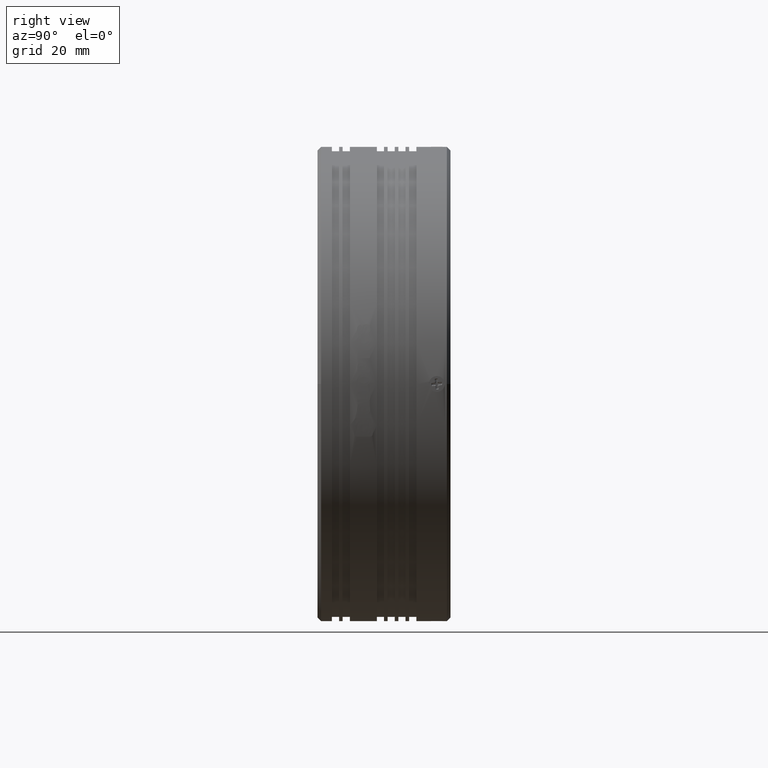
[diagram: clean part render]
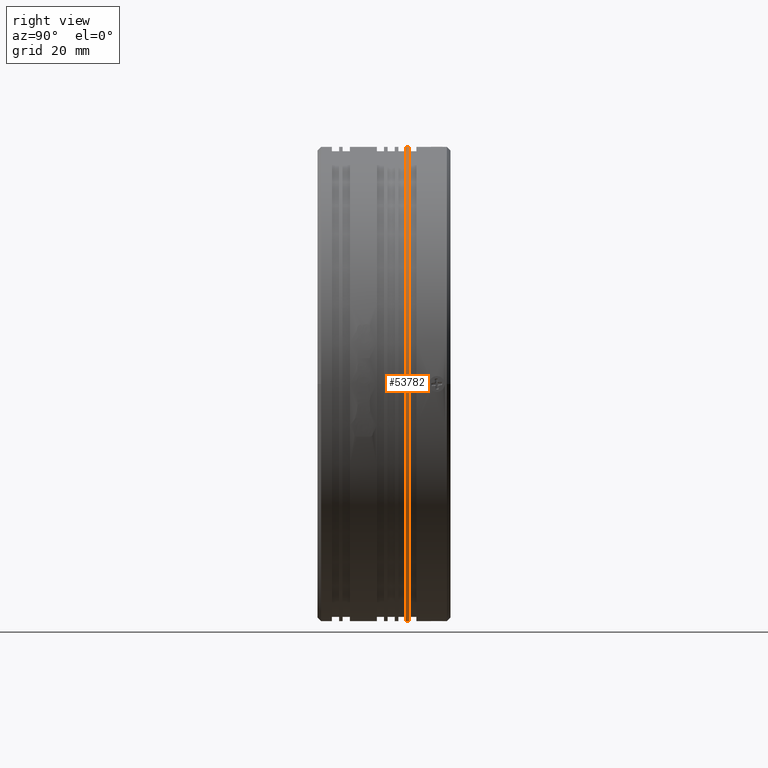
[diagram: same view with one face highlighted and labeled with its STEP entity id]
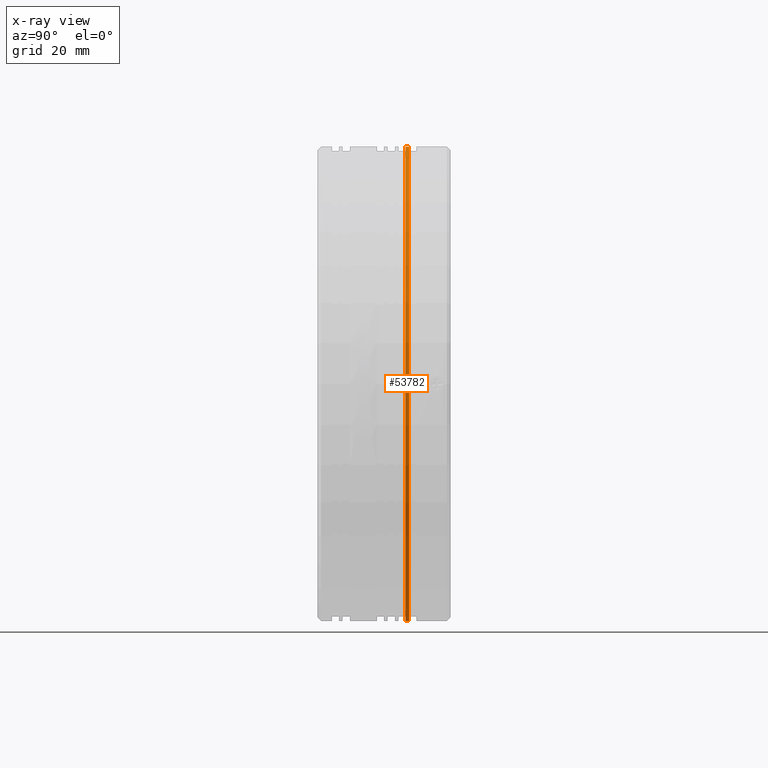
[diagram: x-ray of the same camera — body ghosted, the highlighted face saturated]
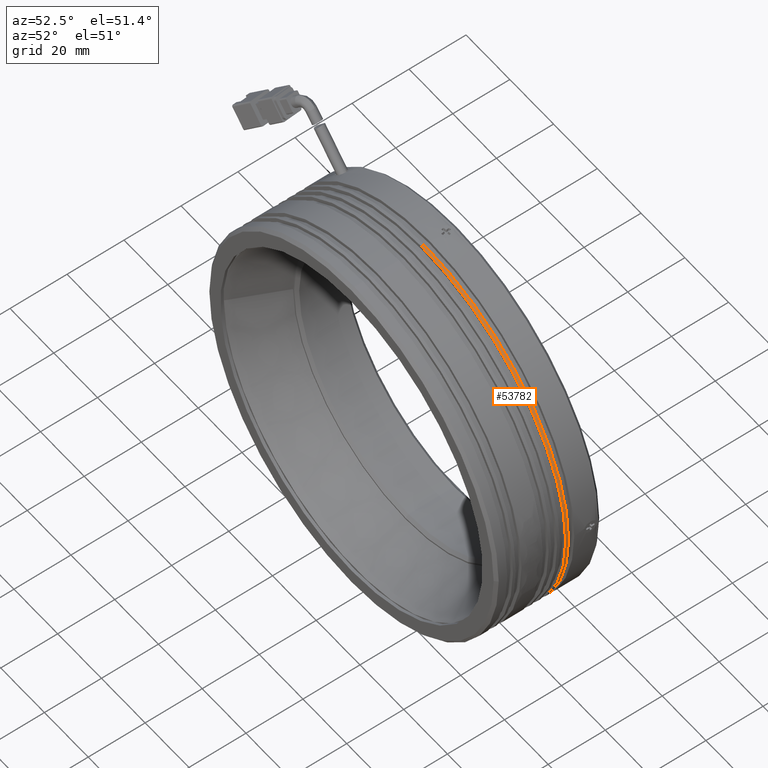
[diagram: same view with one face highlighted and labeled with its STEP entity id]
A machine part, right view. The second image highlights one B-rep face of the part: STEP entity #53782.
The next image is the same camera in x-ray: the body ghosted, the highlighted face saturated — about 0% of this face is hidden behind the body in this view.
A second angle (auxiliary view) of the same face is appended — the face is thin or edge-on in the first view.
In plain terms, the highlighted cylindrical surface (partial cylindrical patch) has radius 66 mm, axis along (-0, -1, -0).
Its self-contained STEP definition (entity closure, byte-faithful):
#2374 = DIRECTION ( 'NONE',  ( -0.0000000000000000000, -1.000000000000000000, -0.0000000000000000000 ) ) ;
#2659 = VECTOR ( 'NONE', #23581, 1000.000000000000000 ) ;
#3466 = ORIENTED_EDGE ( 'NONE', *, *, #65195, .T. ) ;
#9350 = CARTESIAN_POINT ( 'NONE',  ( -22.28931969498006900, 18.64734950584007600, 66.00000000000000000 ) ) ;
#10863 = CARTESIAN_POINT ( 'NONE',  ( -22.28931969498007600, 18.64734950584007600, 0.0000000000000000000 ) ) ;
#11186 = CARTESIAN_POINT ( 'NONE',  ( -22.28931969498006900, 19.64734950584005400, 66.00000000000000000 ) ) ;
#11432 = AXIS2_PLACEMENT_3D ( 'NONE', #58113, #2374, #47135 ) ;
#13356 = VECTOR ( 'NONE', #54608, 1000.000000000000000 ) ;
#14217 = ORIENTED_EDGE ( 'NONE', *, *, #64767, .F. ) ;
#16498 = DIRECTION ( 'NONE',  ( 0.0000000000000000000, 0.0000000000000000000, -1.000000000000000000 ) ) ;
#17967 = CARTESIAN_POINT ( 'NONE',  ( -22.28931969498007600, -31.13173980934526600, -66.00000000000000000 ) ) ;
#21900 = CARTESIAN_POINT ( 'NONE',  ( -22.28931969498006900, -31.13173980934526600, 66.00000000000000000 ) ) ;
#23581 = DIRECTION ( 'NONE',  ( -0.0000000000000000000, -1.000000000000000000, -0.0000000000000000000 ) ) ;
#24508 = VERTEX_POINT ( 'NONE', #11186 ) ;
#24994 = VERTEX_POINT ( 'NONE', #37323 ) ;
#25901 = CARTESIAN_POINT ( 'NONE',  ( -22.28931969498007600, 19.64734950584005400, 0.0000000000000000000 ) ) ;
#28110 = LINE ( 'NONE', #21900, #13356 ) ;
#30724 = AXIS2_PLACEMENT_3D ( 'NONE', #10863, #49655, #16498 ) ;
#31443 = DIRECTION ( 'NONE',  ( 0.0000000000000000000, 0.0000000000000000000, -1.000000000000000000 ) ) ;
#33323 = CYLINDRICAL_SURFACE ( 'NONE', #11432, 66.00000000000000000 ) ;
#37323 = CARTESIAN_POINT ( 'NONE',  ( -22.28931969498007600, 19.64734950584005400, -66.00000000000000000 ) ) ;
#37980 = CIRCLE ( 'NONE', #54791, 66.00000000000000000 ) ;
#38126 = CARTESIAN_POINT ( 'NONE',  ( -22.28931969498007600, 18.64734950584007600, -66.00000000000000000 ) ) ;
#42130 = CIRCLE ( 'NONE', #30724, 66.00000000000000000 ) ;
#46831 = LINE ( 'NONE', #17967, #2659 ) ;
#47135 = DIRECTION ( 'NONE',  ( 0.0000000000000000000, 0.0000000000000000000, -1.000000000000000000 ) ) ;
#49655 = DIRECTION ( 'NONE',  ( 0.0000000000000000000, 1.000000000000000000, 0.0000000000000000000 ) ) ;
#52518 = ORIENTED_EDGE ( 'NONE', *, *, #55427, .F. ) ;
#53782 = ADVANCED_FACE ( 'NONE', ( #67958 ), #33323, .T. ) ;
#54608 = DIRECTION ( 'NONE',  ( -0.0000000000000000000, -1.000000000000000000, -0.0000000000000000000 ) ) ;
#54791 = AXIS2_PLACEMENT_3D ( 'NONE', #25901, #64635, #31443 ) ;
#55245 = VERTEX_POINT ( 'NONE', #38126 ) ;
#55427 = EDGE_CURVE ( 'NONE', #24994, #55245, #46831, .T. ) ;
#58113 = CARTESIAN_POINT ( 'NONE',  ( -22.28931969498007600, -31.13173980934526600, 0.0000000000000000000 ) ) ;
#58153 = ORIENTED_EDGE ( 'NONE', *, *, #63821, .T. ) ;
#61969 = VERTEX_POINT ( 'NONE', #9350 ) ;
#62466 = EDGE_LOOP ( 'NONE', ( #14217, #58153, #3466, #52518 ) ) ;
#63821 = EDGE_CURVE ( 'NONE', #24508, #61969, #28110, .T. ) ;
#64635 = DIRECTION ( 'NONE',  ( 0.0000000000000000000, 1.000000000000000000, 0.0000000000000000000 ) ) ;
#64767 = EDGE_CURVE ( 'NONE', #24508, #24994, #37980, .T. ) ;
#65195 = EDGE_CURVE ( 'NONE', #61969, #55245, #42130, .T. ) ;
#67958 = FACE_OUTER_BOUND ( 'NONE', #62466, .T. ) ;